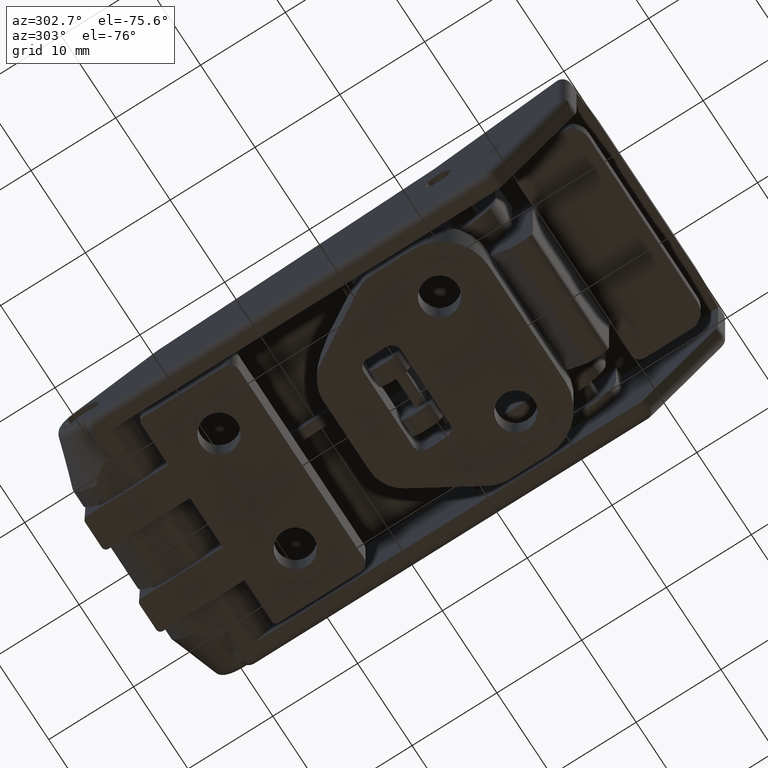
[diagram: clean part render]
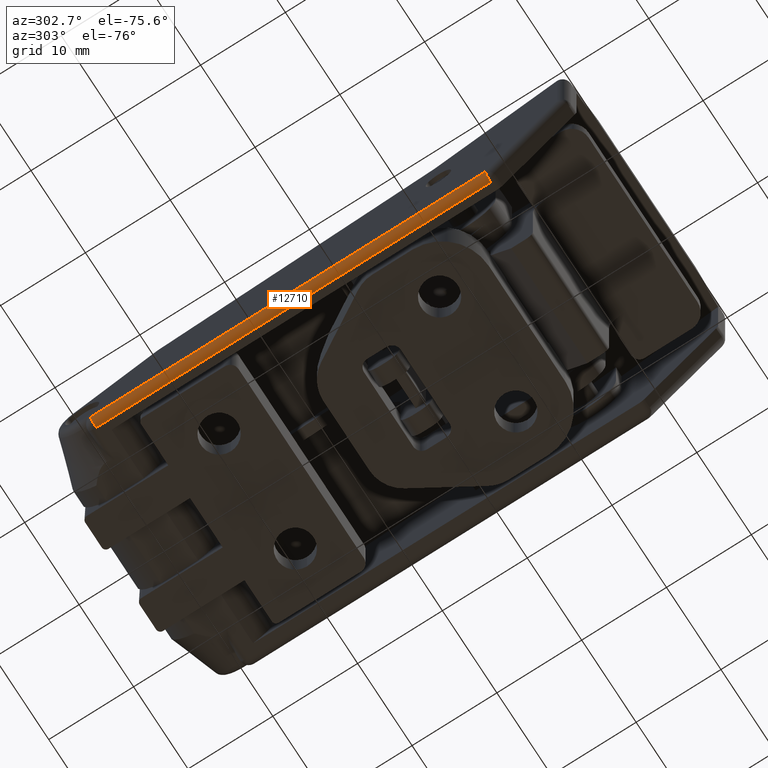
[diagram: same view with one face highlighted and labeled with its STEP entity id]
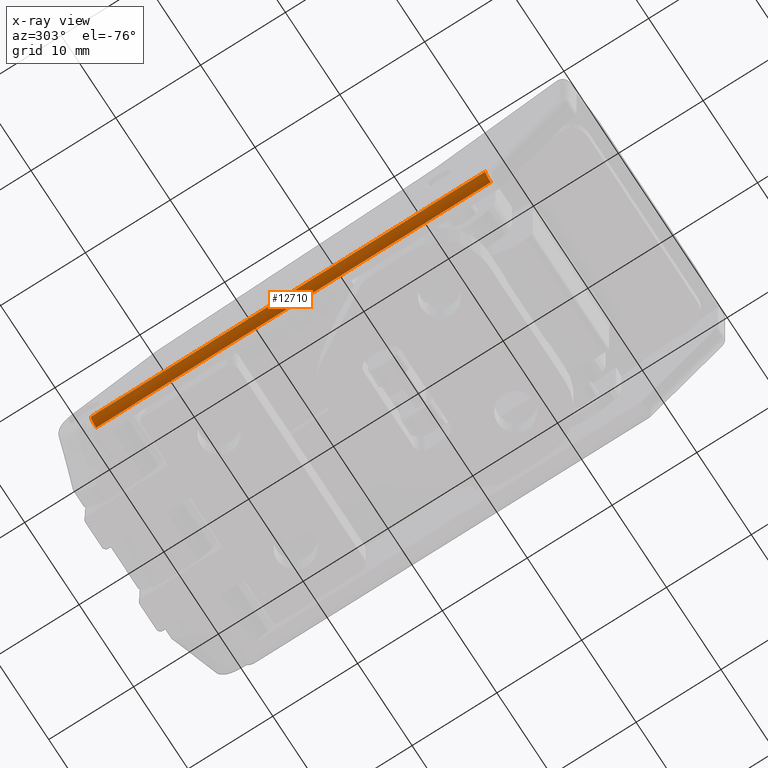
[diagram: x-ray of the same camera — body ghosted, the highlighted face saturated]
A machine part, auxiliary view. The second image highlights one B-rep face of the part: STEP entity #12710.
The next image is the same camera in x-ray: the body ghosted, the highlighted face saturated — about 0% of this face is hidden behind the body in this view.
In plain terms, the highlighted cylindrical surface (edge-blend (fillet) strip) has radius 1 mm, axis along (0, -1, 0).
Its self-contained STEP definition (entity closure, byte-faithful):
#609 = VERTEX_POINT ( 'NONE', #7080 ) ;
#1056 = CARTESIAN_POINT ( 'NONE',  ( -13.99999999999999800, -47.52612087227372200, -4.499999999996111600 ) ) ;
#1235 = EDGE_CURVE ( 'NONE', #1242, #609, #10567, .T. ) ;
#1242 = VERTEX_POINT ( 'NONE', #6787 ) ;
#1336 = ORIENTED_EDGE ( 'NONE', *, *, #7985, .F. ) ;
#2404 = DIRECTION ( 'NONE',  ( -0.0000000000000000000, -1.000000000000000000, -0.0000000000000000000 ) ) ;
#3871 = VECTOR ( 'NONE', #4613, 1000.000000000000000 ) ;
#4386 = CYLINDRICAL_SURFACE ( 'NONE', #7772, 1.000000000000000000 ) ;
#4613 = DIRECTION ( 'NONE',  ( 0.0000000000000000000, 1.000000000000000000, -0.0000000000000000000 ) ) ;
#5706 = VERTEX_POINT ( 'NONE', #10747 ) ;
#6019 = DIRECTION ( 'NONE',  ( 2.602085213965207900E-015, 1.000000000000000000, 0.0000000000000000000 ) ) ;
#6494 = CARTESIAN_POINT ( 'NONE',  ( -13.99999999999999800, -47.52612087227371500, -3.499999999996111100 ) ) ;
#6762 = LINE ( 'NONE', #11142, #3871 ) ;
#6787 = CARTESIAN_POINT ( 'NONE',  ( -15.00000000000000000, -1.000000000000012200, -3.499999999996111100 ) ) ;
#6847 = CARTESIAN_POINT ( 'NONE',  ( -13.99999999999999800, -47.99999999986935300, -3.499999999996111100 ) ) ;
#7080 = CARTESIAN_POINT ( 'NONE',  ( -15.00000000000000000, -47.52612087227371500, -3.499999999996111600 ) ) ;
#7604 = DIRECTION ( 'NONE',  ( 0.0000000000000000000, -6.938893903907228400E-015, -1.000000000000000000 ) ) ;
#7656 = VECTOR ( 'NONE', #2404, 1000.000000000000000 ) ;
#7772 = AXIS2_PLACEMENT_3D ( 'NONE', #6847, #9041, #11260 ) ;
#7985 = EDGE_CURVE ( 'NONE', #10230, #5706, #6762, .T. ) ;
#9041 = DIRECTION ( 'NONE',  ( 0.0000000000000000000, -1.000000000000000000, 0.0000000000000000000 ) ) ;
#9999 = EDGE_CURVE ( 'NONE', #5706, #1242, #13184, .T. ) ;
#10043 = CARTESIAN_POINT ( 'NONE',  ( -15.00000000000000000, -47.99999999986935300, -3.499999999996111100 ) ) ;
#10176 = ORIENTED_EDGE ( 'NONE', *, *, #10182, .T. ) ;
#10182 = EDGE_CURVE ( 'NONE', #10230, #609, #11815, .T. ) ;
#10230 = VERTEX_POINT ( 'NONE', #1056 ) ;
#10567 = LINE ( 'NONE', #10043, #7656 ) ;
#10747 = CARTESIAN_POINT ( 'NONE',  ( -13.99999999999999800, -1.000000000000014700, -4.499999999996111600 ) ) ;
#10792 = AXIS2_PLACEMENT_3D ( 'NONE', #6494, #14149, #7604 ) ;
#11032 = ORIENTED_EDGE ( 'NONE', *, *, #1235, .F. ) ;
#11142 = CARTESIAN_POINT ( 'NONE',  ( -13.99999999999999800, -1.387778780781445700E-014, -4.499999999996111600 ) ) ;
#11260 = DIRECTION ( 'NONE',  ( 0.0000000000000000000, 0.0000000000000000000, -1.000000000000000000 ) ) ;
#11367 = EDGE_LOOP ( 'NONE', ( #10176, #11032, #13525, #1336 ) ) ;
#11815 = CIRCLE ( 'NONE', #10792, 1.000000000000000000 ) ;
#12566 = AXIS2_PLACEMENT_3D ( 'NONE', #12619, #6019, #13685 ) ;
#12619 = CARTESIAN_POINT ( 'NONE',  ( -13.99999999999999800, -1.000000000000014700, -3.499999999996111100 ) ) ;
#12710 = ADVANCED_FACE ( 'NONE', ( #13102 ), #4386, .T. ) ;
#13102 = FACE_OUTER_BOUND ( 'NONE', #11367, .T. ) ;
#13184 = CIRCLE ( 'NONE', #12566, 1.000000000000000900 ) ;
#13525 = ORIENTED_EDGE ( 'NONE', *, *, #9999, .F. ) ;
#13685 = DIRECTION ( 'NONE',  ( -1.000000000000000000, 2.602085213965208300E-015, 0.0000000000000000000 ) ) ;
#14149 = DIRECTION ( 'NONE',  ( -0.0000000000000000000, 1.000000000000000000, -6.938893903907227600E-015 ) ) ;